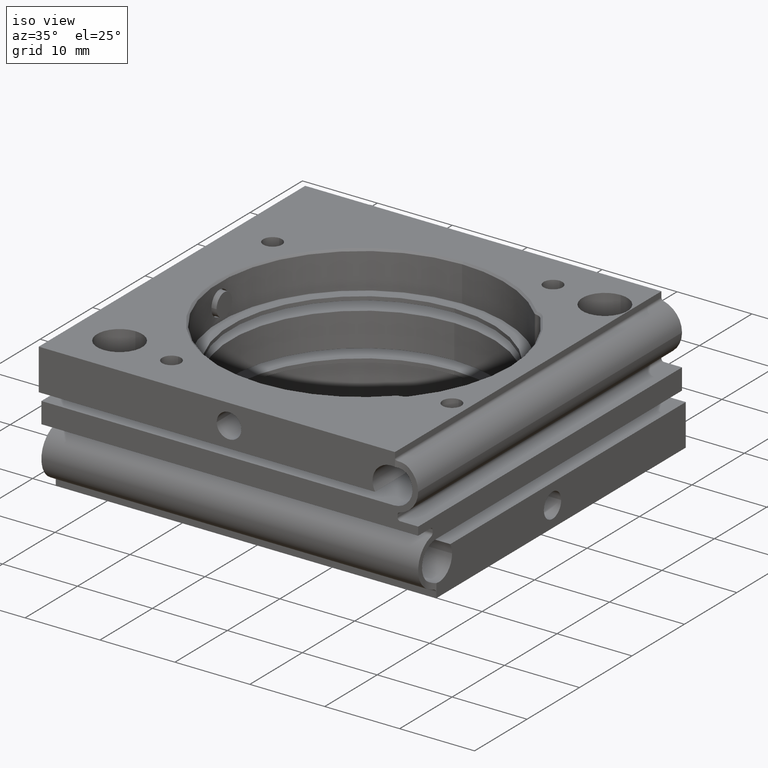
[diagram: clean part render]
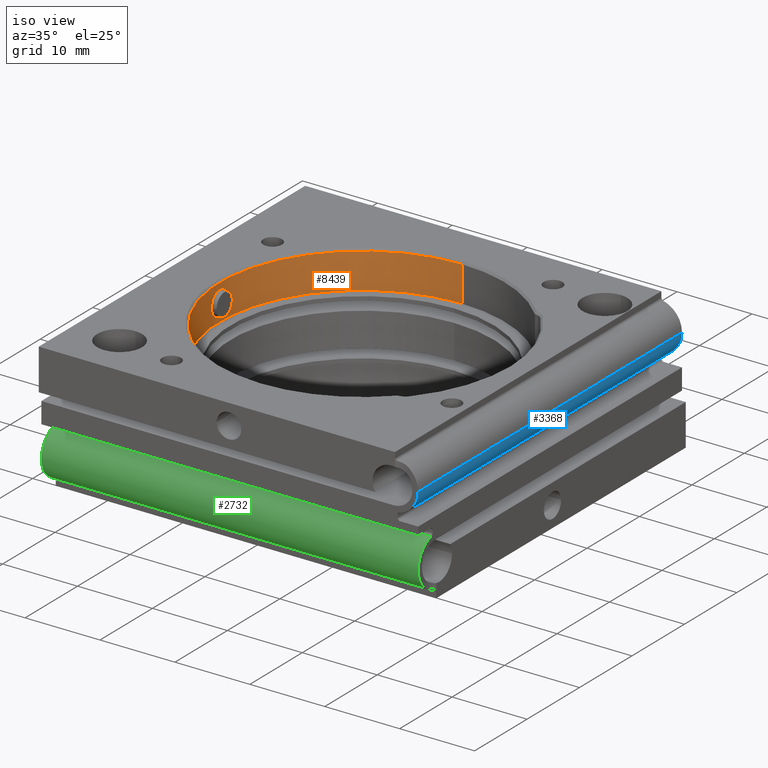
[diagram: same view with three faces highlighted in distinct colors, each labeled with its STEP entity id]
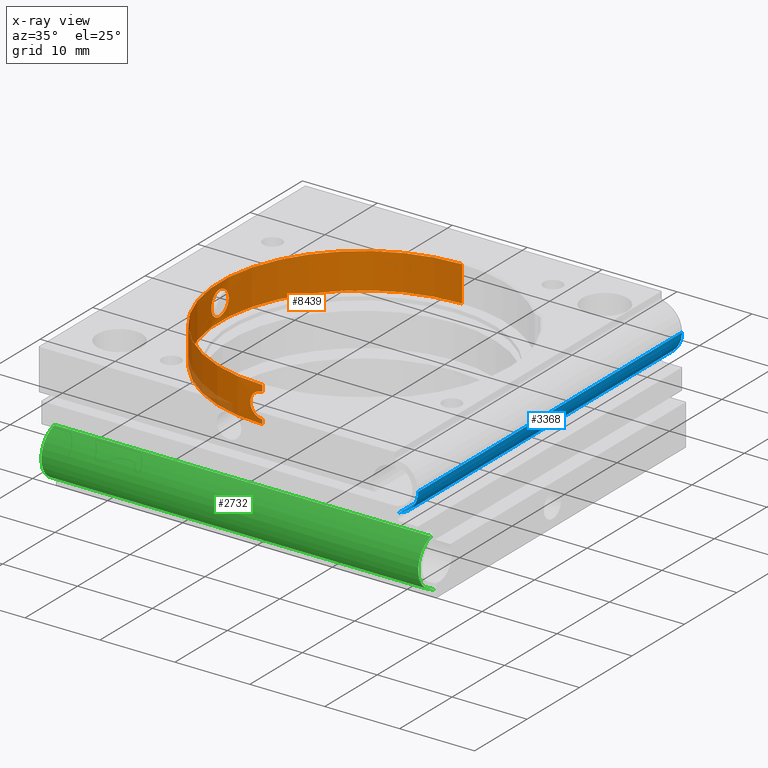
[diagram: x-ray of the same camera — body ghosted, the three highlighted faces saturated]
A machine part, iso view with three faces highlighted in distinct colors.
The next image is the same camera in x-ray (body ghosted, the three faces saturated) — at least one of them is partly hidden behind the body in this view.
Their STEP definitions:

[orange] entity #8439 — the highlighted cylindrical surface (partial cylindrical patch) has radius 19.05 mm, axis along (-0, 0, 1).
#84 = CARTESIAN_POINT ( 'NONE',  ( -19.02366080169686668, 1.005425879609228579, 7.562717791834820957 ) ) ;
#104 = CARTESIAN_POINT ( 'NONE',  ( -3.697785493223491743E-32, -19.05000000000000071, 4.000000000000000000 ) ) ;
#107 = CARTESIAN_POINT ( 'NONE',  ( -1.650000000000001688, -18.97840878472166182, 6.140900534907853370 ) ) ;
#185 = CARTESIAN_POINT ( 'NONE',  ( -18.97840878472165471, -1.649999999999999689, 6.249999999999998224 ) ) ;
#214 = CARTESIAN_POINT ( 'NONE',  ( -1.597315823595468753, -18.98292721722209109, 5.822619052293482866 ) ) ;
#406 = CARTESIAN_POINT ( 'NONE',  ( -2.676328950098065702E-23, -19.05000000000000071, 4.600000000000002309 ) ) ;
#481 = CIRCLE ( 'NONE', #7059, 19.05000000000000426 ) ;
#488 = CARTESIAN_POINT ( 'NONE',  ( -19.00493221006355782, -1.318437202763038885, 5.234880588592252693 ) ) ;
#597 = CARTESIAN_POINT ( 'NONE',  ( -19.03288820857309105, 0.8312960730535323695, 4.808619275777109792 ) ) ;
#653 = CARTESIAN_POINT ( 'NONE',  ( -19.01892787944193941, -1.090269947431020459, 5.006869893780071301 ) ) ;
#730 = EDGE_CURVE ( 'NONE', #3417, #7315, #1932, .T. ) ;
#832 = CARTESIAN_POINT ( 'NONE',  ( -19.02354395279471433, -1.015120132157700805, 7.568436824415528896 ) ) ;
#1071 = VERTEX_POINT ( 'NONE', #6546 ) ;
#1121 = ORIENTED_EDGE ( 'NONE', *, *, #10199, .T. ) ;
#1210 = EDGE_CURVE ( 'NONE', #10106, #7315, #9915, .T. ) ;
#1260 = DIRECTION ( 'NONE',  ( -9.244463733058732095E-33, 5.551115123125781470E-17, 1.000000000000000000 ) ) ;
#1333 = CYLINDRICAL_SURFACE ( 'NONE', #7037, 19.05000000000000071 ) ;
#1350 = CARTESIAN_POINT ( 'NONE',  ( -18.98234907788521753, -1.606161715610203711, 5.815402085650655195 ) ) ;
#1351 = DIRECTION ( 'NONE',  ( -9.244463733058732095E-33, 5.551115123125781470E-17, 1.000000000000000000 ) ) ;
#1405 = CARTESIAN_POINT ( 'NONE',  ( -1.089327059306847145, -19.01898573776998802, 7.494073061843504746 ) ) ;
#1411 = CARTESIAN_POINT ( 'NONE',  ( -18.98291914830409155, 1.597411211239827766, 5.823000541018261700 ) ) ;
#1547 = CARTESIAN_POINT ( 'NONE',  ( 2.332952152375708438E-15, 19.05000000000000426, 8.750000000000000000 ) ) ;
#1638 = CARTESIAN_POINT ( 'NONE',  ( -19.00954817674579544, -1.243131717734086594, 7.340268163359462861 ) ) ;
#1663 = VERTEX_POINT ( 'NONE', #5545 ) ;
#1691 = CARTESIAN_POINT ( 'NONE',  ( -19.04550557614102502, 0.4270043775624488558, 7.847409863888139547 ) ) ;
#1729 = VECTOR ( 'NONE', #8717, 1000.000000000000000 ) ;
#1764 = VERTEX_POINT ( 'NONE', #7756 ) ;
#1779 = CARTESIAN_POINT ( 'NONE',  ( -1.650000000000001688, -18.97840878472165471, 6.250000000000000000 ) ) ;
#1876 = VERTEX_POINT ( 'NONE', #3988 ) ;
#1884 = CARTESIAN_POINT ( 'NONE',  ( -0.2169058293273135873, -19.04905875341815147, 7.889231797222697296 ) ) ;
#1932 = B_SPLINE_CURVE_WITH_KNOTS ( 'NONE', 3,
 ( #1779, #107, #5801, #214, #10088, #5098, #10733, #10034, #4334, #2602, #2703, #3411, #6723, #2658 ),
 .UNSPECIFIED., .F., .F.,
 ( 4, 2, 2, 2, 2, 2, 4 ),
 ( 0.005159947185493062548, 0.005482588728917633762, 0.005805230272342205844, 0.006127871815766777058, 0.006450513359191349140, 0.007095796446040491569, 0.007741079532889633998 ),
 .UNSPECIFIED. ) ;
#1986 = EDGE_CURVE ( 'NONE', #3972, #1876, #6441, .T. ) ;
#2165 = CARTESIAN_POINT ( 'NONE',  ( -19.03621403619985131, -0.7314618236753225311, 4.767048332656361964 ) ) ;
#2222 = CARTESIAN_POINT ( 'NONE',  ( -19.00954817674579900, 1.243131717734081931, 5.159731836640534475 ) ) ;
#2257 = FACE_OUTER_BOUND ( 'NONE', #10292, .T. ) ;
#2279 = CARTESIAN_POINT ( 'NONE',  ( -18.99557200752774122, -1.441379921536983799, 5.418702985907713376 ) ) ;
#2483 = CARTESIAN_POINT ( 'NONE',  ( -18.97840878472165826, 1.649999999999995470, 6.140999988093268414 ) ) ;
#2519 = CARTESIAN_POINT ( 'NONE',  ( -19.05000008418903690, -0.2179912129773705909, 7.900000972000642108 ) ) ;
#2571 = CARTESIAN_POINT ( 'NONE',  ( -18.98234907788521397, 1.606161715610198826, 6.684597914349341252 ) ) ;
#2602 = CARTESIAN_POINT ( 'NONE',  ( -1.014046501044555182, -19.02360314542000808, 4.930706646325136333 ) ) ;
#2658 = CARTESIAN_POINT ( 'NONE',  ( -2.676328950098065702E-23, -19.05000000000000071, 4.600000000000002309 ) ) ;
#2703 = CARTESIAN_POINT ( 'NONE',  ( -0.8299360128548322058, -19.03295036661131334, 4.807806520779631221 ) ) ;
#2944 = CARTESIAN_POINT ( 'NONE',  ( -8.088905766426391678E-32, 4.857225732735060850E-16, 8.750000000000001776 ) ) ;
#3021 = CARTESIAN_POINT ( 'NONE',  ( -3.697785493223491743E-32, 2.220446049250312095E-16, 3.999999999999999112 ) ) ;
#3085 = CARTESIAN_POINT ( 'NONE',  ( -1.006048460868996131, -19.02362642028966988, 7.562214025665359607 ) ) ;
#3091 = CARTESIAN_POINT ( 'NONE',  ( -18.97840878472165116, -1.649999999999999911, 6.031997506143905952 ) ) ;
#3144 = CARTESIAN_POINT ( 'NONE',  ( -1.243335175951153504, -19.00953891013348596, 7.340169191265876414 ) ) ;
#3291 = CARTESIAN_POINT ( 'NONE',  ( -19.03228807867176897, -0.8261730979972802258, 4.817677685528403586 ) ) ;
#3382 = CARTESIAN_POINT ( 'NONE',  ( -19.01892787944193941, 1.090269947431016906, 7.493130106219923370 ) ) ;
#3411 = CARTESIAN_POINT ( 'NONE',  ( -0.4326951818071759770, -19.04612213346759830, 4.643298193011543340 ) ) ;
#3417 = VERTEX_POINT ( 'NONE', #4193 ) ;
#3486 = DIRECTION ( 'NONE',  ( -9.244463733058732095E-33, 5.551115123125781470E-17, 1.000000000000000000 ) ) ;
#3493 = CARTESIAN_POINT ( 'NONE',  ( -18.98559464617742165, -1.565700718210254916, 6.781755004083168892 ) ) ;
#3587 = EDGE_CURVE ( 'NONE', #1071, #10106, #9195, .T. ) ;
#3627 = CARTESIAN_POINT ( 'NONE',  ( -0.1076055733675318621, -19.05000000000000426, 7.900000000000002132 ) ) ;
#3652 = DIRECTION ( 'NONE',  ( -1.000000000000000000, 5.551115123125782702E-17, -9.106159978880874930E-17 ) ) ;
#3664 = ORIENTED_EDGE ( 'NONE', *, *, #1986, .T. ) ;
#3801 = CARTESIAN_POINT ( 'NONE',  ( -19.02354395279470722, 1.015120132157696808, 4.931563175584468439 ) ) ;
#3860 = CARTESIAN_POINT ( 'NONE',  ( -19.04283889331702184, -0.5317594518947715843, 4.684300816730023520 ) ) ;
#3861 = DIRECTION ( 'NONE',  ( 0.000000000000000000, -1.000000000000000000, 4.553079989440438697E-17 ) ) ;
#3972 = VERTEX_POINT ( 'NONE', #9047 ) ;
#3988 = CARTESIAN_POINT ( 'NONE',  ( -18.97840878472165471, 1.649999999999995470, 6.249999999999998224 ) ) ;
#4070 = CARTESIAN_POINT ( 'NONE',  ( -3.697785493223491743E-32, 2.220446049250312095E-16, 3.999999999999999112 ) ) ;
#4193 = CARTESIAN_POINT ( 'NONE',  ( -1.650000000000001688, -18.97840878472165471, 6.250000000000000000 ) ) ;
#4205 = CARTESIAN_POINT ( 'NONE',  ( -19.03228807867176542, 0.8261730979972772282, 7.682322314471591973 ) ) ;
#4251 = LINE ( 'NONE', #7612, #7030 ) ;
#4334 = CARTESIAN_POINT ( 'NONE',  ( -1.242419866459256061, -19.00959519849399726, 5.158911465434536936 ) ) ;
#4358 = CARTESIAN_POINT ( 'NONE',  ( -18.97934719712456086, -1.639305322337799353, 6.466169322338683578 ) ) ;
#4392 = CARTESIAN_POINT ( 'NONE',  ( -0.5312277239909477533, -19.04285372020587275, 7.815878400792404257 ) ) ;
#4574 = CARTESIAN_POINT ( 'NONE',  ( -18.97840878472166182, 1.649999999999996581, 6.467997553798809030 ) ) ;
#4611 = CARTESIAN_POINT ( 'NONE',  ( -18.99617178406149520, 1.432324170649410089, 5.423830064041553101 ) ) ;
#4647 = ORIENTED_EDGE ( 'NONE', *, *, #9609, .T. ) ;
#5015 = CARTESIAN_POINT ( 'NONE',  ( -19.04283889331702184, 0.5317594518947686977, 7.815699183269972927 ) ) ;
#5054 = ORIENTED_EDGE ( 'NONE', *, *, #8202, .F. ) ;
#5098 = CARTESIAN_POINT ( 'NONE',  ( -1.482654979036857279, -18.99226060819843909, 5.517923020540077772 ) ) ;
#5122 = CARTESIAN_POINT ( 'NONE',  ( -18.99617178406149165, -1.432324170649413864, 7.076169935958443347 ) ) ;
#5205 = CARTESIAN_POINT ( 'NONE',  ( -0.4284177245832479497, -19.04547573003193861, 7.847055815269159851 ) ) ;
#5393 = ORIENTED_EDGE ( 'NONE', *, *, #3587, .F. ) ;
#5409 = DIRECTION ( 'NONE',  ( 0.000000000000000000, -1.000000000000000000, 4.553079989440438697E-17 ) ) ;
#5475 = CARTESIAN_POINT ( 'NONE',  ( -1.482700982788256683, -18.99225695614296683, 6.981974265979707717 ) ) ;
#5484 = VECTOR ( 'NONE', #5906, 1000.000000000000000 ) ;
#5530 = CARTESIAN_POINT ( 'NONE',  ( -1.650000000000001688, -18.97840878472165471, 6.250000000000000000 ) ) ;
#5535 = CARTESIAN_POINT ( 'NONE',  ( -18.97840878472165471, -1.649999999999999689, 6.249999999999998224 ) ) ;
#5545 = CARTESIAN_POINT ( 'NONE',  ( 2.676289507052804651E-23, -19.05000000000000071, 7.899999999999999467 ) ) ;
#5588 = CARTESIAN_POINT ( 'NONE',  ( -1.606954639539506680, -18.98228391834215856, 6.682378200344954777 ) ) ;
#5794 = CARTESIAN_POINT ( 'NONE',  ( -19.00481156009691830, 1.312719522444512732, 5.244576333926262990 ) ) ;
#5801 = CARTESIAN_POINT ( 'NONE',  ( -1.639285983885752529, -18.97934890974122268, 6.033635081848483850 ) ) ;
#5824 = CARTESIAN_POINT ( 'NONE',  ( -19.03288820857309460, -0.8312960730535362552, 7.691380724222887544 ) ) ;
#5847 = VERTEX_POINT ( 'NONE', #1547 ) ;
#5906 = DIRECTION ( 'NONE',  ( -9.244463733058732095E-33, 5.551115123125781470E-17, 1.000000000000000000 ) ) ;
#5987 = CARTESIAN_POINT ( 'NONE',  ( -18.97840878472166182, -1.649999999999999911, 6.359000011906728034 ) ) ;
#6173 = B_SPLINE_CURVE_WITH_KNOTS ( 'NONE', 3,
 ( #8797, #2483, #10361, #1411, #9660, #8085, #4611, #5794, #2222, #3801, #597, #7110, #7926, #9607, #9103, #10722, #3860, #2165, #3291, #6608, #653, #488, #2279, #1350, #3091, #5535 ),
 .UNSPECIFIED., .F., .F.,
 ( 4, 2, 2, 2, 2, 2, 2, 2, 2, 2, 2, 2, 4 ),
 ( 0.002578768495344074298, 0.002901117303037179483, 0.003223466110730284669, 0.003545814918423389854, 0.003868163726116495039, 0.004512861341502702808, 0.005157558956888910577, 0.005479907764582014895, 0.005802256572275119213, 0.006124605379968223531, 0.006446954187661326982, 0.007091651803047533016, 0.007736349418433739050 ),
 .UNSPECIFIED. ) ;
#6441 = B_SPLINE_CURVE_WITH_KNOTS ( 'NONE', 3,
 ( #185, #5987, #4358, #7567, #3493, #7667, #5122, #9086, #1638, #832, #5824, #9955, #2519, #10058, #9135, #1691, #5015, #8328, #4205, #84, #3382, #6694, #10004, #2571, #4574, #7714 ),
 .UNSPECIFIED., .F., .F.,
 ( 4, 2, 2, 2, 2, 2, 2, 2, 2, 2, 2, 2, 4 ),
 ( -0.002578753990594046495, -0.002256408835222913512, -0.001934063679851780963, -0.001611718524480647979, -0.001289373369109515213, -0.0006446830583672501138, 7.252375015202178199E-09, 0.0003223524077461468844, 0.0006446975631172794340, 0.0009670427184884115498, 0.001289387873859544099, 0.001934078184601809199, 0.002578768495344074298 ),
 .UNSPECIFIED. ) ;
#6527 = B_SPLINE_CURVE_WITH_KNOTS ( 'NONE', 3,
 ( #9324, #3627, #1884, #5205, #4392, #10356, #7869, #3085, #1405, #3144, #7974, #7045, #5475, #5588, #8903, #5530 ),
 .UNSPECIFIED., .F., .F.,
 ( 4, 2, 2, 2, 2, 2, 2, 4 ),
 ( 0.002581128301973512409, 0.002903480662413455201, 0.003225833022853397992, 0.003548185383293341651, 0.003870537743733285744, 0.004192890104173229403, 0.004515242464613173495, 0.005159947185493062548 ),
 .UNSPECIFIED. ) ;
#6546 = CARTESIAN_POINT ( 'NONE',  ( 2.332952152375708043E-15, 19.05000000000000071, 3.999999999999998224 ) ) ;
#6554 = LINE ( 'NONE', #104, #5484 ) ;
#6608 = CARTESIAN_POINT ( 'NONE',  ( -19.02366080169686668, -1.005425879609231687, 4.937282208165173714 ) ) ;
#6694 = CARTESIAN_POINT ( 'NONE',  ( -19.00493221006355427, 1.318437202763035332, 7.265119411407742867 ) ) ;
#6723 = CARTESIAN_POINT ( 'NONE',  ( -0.2154038755059544674, -19.04999999999999716, 4.600000000000001421 ) ) ;
#7030 = VECTOR ( 'NONE', #3486, 1000.000000000000000 ) ;
#7037 = AXIS2_PLACEMENT_3D ( 'NONE', #3021, #8778, #5409 ) ;
#7045 = CARTESIAN_POINT ( 'NONE',  ( -1.431033802537794886, -18.99626879805296653, 7.078357864236023644 ) ) ;
#7059 = AXIS2_PLACEMENT_3D ( 'NONE', #2944, #1260, #3652 ) ;
#7106 = EDGE_LOOP ( 'NONE', ( #3664, #1121 ) ) ;
#7110 = CARTESIAN_POINT ( 'NONE',  ( -19.04607611152903601, 0.4345934594054675637, 4.643836845685497927 ) ) ;
#7315 = VERTEX_POINT ( 'NONE', #406 ) ;
#7421 = CARTESIAN_POINT ( 'NONE',  ( -3.697785493223491743E-32, -19.05000000000000071, 4.000000000000000000 ) ) ;
#7563 = EDGE_CURVE ( 'NONE', #1071, #5847, #4251, .T. ) ;
#7567 = CARTESIAN_POINT ( 'NONE',  ( -18.98291914830409510, -1.597411211239831763, 6.676999458981736524 ) ) ;
#7612 = CARTESIAN_POINT ( 'NONE',  ( 2.332952152375708043E-15, 19.05000000000000071, 3.999999999999998224 ) ) ;
#7667 = CARTESIAN_POINT ( 'NONE',  ( -18.99223714702448973, -1.482953458186736517, 6.981458245030840004 ) ) ;
#7701 = ORIENTED_EDGE ( 'NONE', *, *, #7563, .T. ) ;
#7714 = CARTESIAN_POINT ( 'NONE',  ( -18.97840878472165471, 1.649999999999995470, 6.249999999999998224 ) ) ;
#7756 = CARTESIAN_POINT ( 'NONE',  ( 0.000000000000000000, -19.05000000000000426, 8.750000000000003553 ) ) ;
#7869 = CARTESIAN_POINT ( 'NONE',  ( -0.8274184727894466906, -19.03223251106518532, 7.681578787792184393 ) ) ;
#7926 = CARTESIAN_POINT ( 'NONE',  ( -19.05000008418903690, 0.2179912129773674545, 4.599999027999355228 ) ) ;
#7974 = CARTESIAN_POINT ( 'NONE',  ( -1.311578202875876453, -19.00489012358731955, 7.256874924202771027 ) ) ;
#8085 = CARTESIAN_POINT ( 'NONE',  ( -18.99223714702449328, 1.482953458186732520, 5.518541754969157331 ) ) ;
#8088 = EDGE_CURVE ( 'NONE', #1663, #3417, #6527, .T. ) ;
#8202 = EDGE_CURVE ( 'NONE', #1663, #1764, #6554, .T. ) ;
#8328 = CARTESIAN_POINT ( 'NONE',  ( -19.03621403619985131, 0.7314618236753194225, 7.732951667343633595 ) ) ;
#8439 = ADVANCED_FACE ( 'NONE', ( #9472, #2257 ), #1333, .F. ) ;
#8633 = CARTESIAN_POINT ( 'NONE',  ( -5.893345629824942805E-32, -19.05000000000000071, 4.000000000000000000 ) ) ;
#8717 = DIRECTION ( 'NONE',  ( -9.244463733058732095E-33, 5.551115123125781470E-17, 1.000000000000000000 ) ) ;
#8778 = DIRECTION ( 'NONE',  ( -9.244463733058732095E-33, 5.551115123125781470E-17, 1.000000000000000000 ) ) ;
#8797 = CARTESIAN_POINT ( 'NONE',  ( -18.97840878472165471, 1.649999999999995470, 6.249999999999998224 ) ) ;
#8804 = ORIENTED_EDGE ( 'NONE', *, *, #1210, .F. ) ;
#8903 = CARTESIAN_POINT ( 'NONE',  ( -1.650000000000002576, -18.97840878472165471, 6.468003358909733436 ) ) ;
#9047 = CARTESIAN_POINT ( 'NONE',  ( -18.97840878472165471, -1.649999999999999689, 6.249999999999998224 ) ) ;
#9086 = CARTESIAN_POINT ( 'NONE',  ( -19.00481156009691119, -1.312719522444517617, 7.255423666073731681 ) ) ;
#9103 = CARTESIAN_POINT ( 'NONE',  ( -19.04906516381053194, -0.2161753320259359457, 4.610695501888649517 ) ) ;
#9135 = CARTESIAN_POINT ( 'NONE',  ( -19.04906516381052839, 0.2161753320259321709, 7.889304498111348707 ) ) ;
#9195 = CIRCLE ( 'NONE', #10227, 19.05000000000000071 ) ;
#9324 = CARTESIAN_POINT ( 'NONE',  ( 2.676289507052804651E-23, -19.05000000000000071, 7.899999999999999467 ) ) ;
#9407 = ORIENTED_EDGE ( 'NONE', *, *, #730, .T. ) ;
#9472 = FACE_BOUND ( 'NONE', #7106, .T. ) ;
#9607 = CARTESIAN_POINT ( 'NONE',  ( -19.04999995790335632, -0.1090066420755774063, 4.600000486024906188 ) ) ;
#9609 = EDGE_CURVE ( 'NONE', #5847, #1764, #481, .T. ) ;
#9660 = CARTESIAN_POINT ( 'NONE',  ( -18.98559464617742165, 1.565700718210250475, 5.718244995916827556 ) ) ;
#9915 = LINE ( 'NONE', #7421, #1729 ) ;
#9955 = CARTESIAN_POINT ( 'NONE',  ( -19.04607611152902891, -0.4345934594054710054, 7.856163154314497632 ) ) ;
#10004 = CARTESIAN_POINT ( 'NONE',  ( -18.99557200752774477, 1.441379921536979580, 7.081297014092283071 ) ) ;
#10034 = CARTESIAN_POINT ( 'NONE',  ( -1.312122914967410292, -19.00485309323475747, 5.243786814184570488 ) ) ;
#10058 = CARTESIAN_POINT ( 'NONE',  ( -19.04999995790335632, 0.1090066420755742005, 7.899999513975089371 ) ) ;
#10088 = CARTESIAN_POINT ( 'NONE',  ( -1.565546011874618726, -18.98560756155283968, 5.717770561297646381 ) ) ;
#10106 = VERTEX_POINT ( 'NONE', #8633 ) ;
#10199 = EDGE_CURVE ( 'NONE', #1876, #3972, #6173, .T. ) ;
#10202 = ORIENTED_EDGE ( 'NONE', *, *, #8088, .T. ) ;
#10227 = AXIS2_PLACEMENT_3D ( 'NONE', #4070, #1351, #3861 ) ;
#10292 = EDGE_LOOP ( 'NONE', ( #5393, #7701, #4647, #5054, #10202, #9407, #8804 ) ) ;
#10356 = CARTESIAN_POINT ( 'NONE',  ( -0.7309250033541200287, -19.03623464194974346, 7.733214987881583902 ) ) ;
#10361 = CARTESIAN_POINT ( 'NONE',  ( -18.97934719712456797, 1.639305322337795801, 6.033830677661314645 ) ) ;
#10722 = CARTESIAN_POINT ( 'NONE',  ( -19.04550557614103212, -0.4270043775624526861, 4.652590136111856012 ) ) ;
#10733 = CARTESIAN_POINT ( 'NONE',  ( -1.431938200656817539, -18.99620121574092479, 5.423147831356095239 ) ) ;

[blue] entity #3368 — the highlighted cylindrical surface (edge-blend (fillet) strip) has radius 3.25 mm, axis along (-0, -1, 0).
#226 = VERTEX_POINT ( 'NONE', #2138 ) ;
#294 = ORIENTED_EDGE ( 'NONE', *, *, #9478, .T. ) ;
#994 = CARTESIAN_POINT ( 'NONE',  ( 21.65000000000000568, -24.89999999999999858, 4.750000000000000000 ) ) ;
#1135 = DIRECTION ( 'NONE',  ( -9.823725385216690060E-17, -1.000000000000000000, 5.551115123125782702E-17 ) ) ;
#1463 = ORIENTED_EDGE ( 'NONE', *, *, #2725, .T. ) ;
#1521 = CARTESIAN_POINT ( 'NONE',  ( 24.90000000000000924, 25.40000000000000568, 4.749999999999999112 ) ) ;
#1708 = EDGE_CURVE ( 'NONE', #7813, #226, #3629, .T. ) ;
#1859 = CIRCLE ( 'NONE', #2567, 3.249999999999999556 ) ;
#2138 = CARTESIAN_POINT ( 'NONE',  ( 24.90000000000000568, -24.89999999999999858, 4.749999999999999112 ) ) ;
#2567 = AXIS2_PLACEMENT_3D ( 'NONE', #994, #5825, #9087 ) ;
#2725 = EDGE_CURVE ( 'NONE', #5435, #6834, #8720, .T. ) ;
#3368 = ADVANCED_FACE ( 'NONE', ( #6792 ), #7554, .T. ) ;
#3629 = LINE ( 'NONE', #7700, #3823 ) ;
#3672 = CARTESIAN_POINT ( 'NONE',  ( 22.41736111111111640, 25.40000000000000568, 1.591890292413143504 ) ) ;
#3740 = DIRECTION ( 'NONE',  ( -9.823725385216690060E-17, -1.000000000000000000, 5.551115123125782702E-17 ) ) ;
#3823 = VECTOR ( 'NONE', #3740, 1000.000000000000000 ) ;
#3963 = AXIS2_PLACEMENT_3D ( 'NONE', #5370, #1135, #7656 ) ;
#4348 = DIRECTION ( 'NONE',  ( 1.000000000000000000, 0.000000000000000000, 0.000000000000000000 ) ) ;
#5370 = CARTESIAN_POINT ( 'NONE',  ( 21.65000000000000924, 25.40000000000000568, 4.749999999999997335 ) ) ;
#5416 = CARTESIAN_POINT ( 'NONE',  ( 22.41736111111111640, -24.89999999999999858, 1.591890292413147057 ) ) ;
#5435 = VERTEX_POINT ( 'NONE', #5416 ) ;
#5744 = VECTOR ( 'NONE', #10495, 1000.000000000000000 ) ;
#5825 = DIRECTION ( 'NONE',  ( 9.823725385216690060E-17, 1.000000000000000000, -5.551115123125782702E-17 ) ) ;
#6061 = EDGE_LOOP ( 'NONE', ( #8594, #8609, #294, #1463 ) ) ;
#6562 = CARTESIAN_POINT ( 'NONE',  ( 22.41736111111111640, 25.40000000000000568, 1.591890292413144170 ) ) ;
#6590 = AXIS2_PLACEMENT_3D ( 'NONE', #8473, #8317, #4348 ) ;
#6792 = FACE_OUTER_BOUND ( 'NONE', #6061, .T. ) ;
#6834 = VERTEX_POINT ( 'NONE', #6562 ) ;
#7554 = CYLINDRICAL_SURFACE ( 'NONE', #6590, 3.249999999999999556 ) ;
#7656 = DIRECTION ( 'NONE',  ( 1.000000000000000000, 0.000000000000000000, 0.000000000000000000 ) ) ;
#7700 = CARTESIAN_POINT ( 'NONE',  ( 24.90000000000000924, 25.40000000000000568, 4.749999999999997335 ) ) ;
#7813 = VERTEX_POINT ( 'NONE', #1521 ) ;
#8317 = DIRECTION ( 'NONE',  ( -9.823725385216690060E-17, -1.000000000000000000, 5.551115123125782702E-17 ) ) ;
#8473 = CARTESIAN_POINT ( 'NONE',  ( 21.65000000000000924, 25.40000000000000568, 4.749999999999997335 ) ) ;
#8594 = ORIENTED_EDGE ( 'NONE', *, *, #10089, .T. ) ;
#8609 = ORIENTED_EDGE ( 'NONE', *, *, #1708, .T. ) ;
#8720 = LINE ( 'NONE', #3672, #5744 ) ;
#9087 = DIRECTION ( 'NONE',  ( 1.000000000000000000, 0.000000000000000000, 0.000000000000000000 ) ) ;
#9319 = CIRCLE ( 'NONE', #3963, 3.249999999999999556 ) ;
#9478 = EDGE_CURVE ( 'NONE', #226, #5435, #1859, .T. ) ;
#10089 = EDGE_CURVE ( 'NONE', #6834, #7813, #9319, .T. ) ;
#10495 = DIRECTION ( 'NONE',  ( 9.823725385216690060E-17, 1.000000000000000000, -5.551115123125782702E-17 ) ) ;

[green] entity #2732 — the highlighted cylindrical surface (edge-blend (fillet) strip) has radius 3.25 mm, axis along (1, -0, 0).
#355 = CIRCLE ( 'NONE', #10574, 3.249999999999999556 ) ;
#360 = CARTESIAN_POINT ( 'NONE',  ( -25.40000000000000213, -21.64999999999999147, -4.749999999999998224 ) ) ;
#509 = CIRCLE ( 'NONE', #7615, 3.249999999999999556 ) ;
#540 = VERTEX_POINT ( 'NONE', #4516 ) ;
#748 = EDGE_CURVE ( 'NONE', #4217, #10025, #509, .T. ) ;
#1036 = CARTESIAN_POINT ( 'NONE',  ( 25.02706603401727392, -22.83337723049481838, -7.785977819579875892 ) ) ;
#1091 = CARTESIAN_POINT ( 'NONE',  ( 24.92141869312925095, -23.25716026191370034, -7.584533274308141948 ) ) ;
#1327 = CYLINDRICAL_SURFACE ( 'NONE', #7648, 3.249999999999999556 ) ;
#1880 = CARTESIAN_POINT ( 'NONE',  ( 24.90000000000000924, -21.64999999999999503, -4.749999999999998224 ) ) ;
#2132 = CARTESIAN_POINT ( 'NONE',  ( 24.90000000000000924, -23.64999999999997726, -7.311737691489909707 ) ) ;
#2188 = VECTOR ( 'NONE', #5177, 1000.000000000000000 ) ;
#2221 = VECTOR ( 'NONE', #8420, 1000.000000000000000 ) ;
#2732 = ADVANCED_FACE ( 'NONE', ( #7789 ), #1327, .T. ) ;
#3055 = CARTESIAN_POINT ( 'NONE',  ( -25.40000000000000568, -22.41736111111110219, -1.591890292413145280 ) ) ;
#3222 = ORIENTED_EDGE ( 'NONE', *, *, #7703, .T. ) ;
#3586 = CARTESIAN_POINT ( 'NONE',  ( 25.10870090299697210, -22.62258075952401271, -7.858245202547762709 ) ) ;
#3775 = DIRECTION ( 'NONE',  ( 0.000000000000000000, 1.000000000000000000, 0.000000000000000000 ) ) ;
#3776 = EDGE_CURVE ( 'NONE', #4157, #5797, #355, .T. ) ;
#4022 = ORIENTED_EDGE ( 'NONE', *, *, #748, .T. ) ;
#4056 = EDGE_CURVE ( 'NONE', #10025, #540, #5944, .T. ) ;
#4132 = CARTESIAN_POINT ( 'NONE',  ( -25.40000000000000213, -22.41736111111110219, -1.591890292413145280 ) ) ;
#4157 = VERTEX_POINT ( 'NONE', #2132 ) ;
#4217 = VERTEX_POINT ( 'NONE', #3055 ) ;
#4284 = DIRECTION ( 'NONE',  ( 1.000000000000000000, -5.551115123125782702E-17, 1.232595164407830946E-32 ) ) ;
#4353 = CARTESIAN_POINT ( 'NONE',  ( 24.90000000000000924, -23.64999999999997726, -7.311737691489909707 ) ) ;
#4431 = ORIENTED_EDGE ( 'NONE', *, *, #4056, .T. ) ;
#4516 = CARTESIAN_POINT ( 'NONE',  ( 25.22500543228293424, -22.41736111111110219, -7.908109707586851833 ) ) ;
#5000 = LINE ( 'NONE', #4132, #2221 ) ;
#5177 = DIRECTION ( 'NONE',  ( 1.000000000000000000, -5.551115123125782702E-17, 1.232595164407830946E-32 ) ) ;
#5719 = ORIENTED_EDGE ( 'NONE', *, *, #9951, .T. ) ;
#5797 = VERTEX_POINT ( 'NONE', #8776 ) ;
#5855 = DIRECTION ( 'NONE',  ( 0.000000000000000000, 1.000000000000000000, 0.000000000000000000 ) ) ;
#5944 = LINE ( 'NONE', #7574, #2188 ) ;
#6283 = B_SPLINE_CURVE_WITH_KNOTS ( 'NONE', 3,
 ( #8698, #3586, #1036, #1091, #6895, #4353 ),
 .UNSPECIFIED., .F., .F.,
 ( 4, 2, 4 ),
 ( 0.000000000000000000, 0.0007118922461806711111, 0.001423784492361342222 ),
 .UNSPECIFIED. ) ;
#6895 = CARTESIAN_POINT ( 'NONE',  ( 24.90000000000000924, -23.46023702222724339, -7.459889454570983069 ) ) ;
#6952 = EDGE_LOOP ( 'NONE', ( #4022, #4431, #3222, #6980, #5719 ) ) ;
#6980 = ORIENTED_EDGE ( 'NONE', *, *, #3776, .T. ) ;
#7040 = DIRECTION ( 'NONE',  ( 0.000000000000000000, 1.000000000000000000, 0.000000000000000000 ) ) ;
#7574 = CARTESIAN_POINT ( 'NONE',  ( -25.40000000000000213, -22.41736111111110219, -7.908109707586850057 ) ) ;
#7615 = AXIS2_PLACEMENT_3D ( 'NONE', #9224, #4284, #5855 ) ;
#7648 = AXIS2_PLACEMENT_3D ( 'NONE', #360, #9635, #3775 ) ;
#7703 = EDGE_CURVE ( 'NONE', #540, #4157, #6283, .T. ) ;
#7789 = FACE_OUTER_BOUND ( 'NONE', #6952, .T. ) ;
#8420 = DIRECTION ( 'NONE',  ( -1.000000000000000000, 5.551115123125782702E-17, -1.232595164407830946E-32 ) ) ;
#8519 = DIRECTION ( 'NONE',  ( -1.000000000000000000, 5.551115123125782702E-17, -1.232595164407830946E-32 ) ) ;
#8698 = CARTESIAN_POINT ( 'NONE',  ( 25.22500543228293424, -22.41736111111110219, -7.908109707586851833 ) ) ;
#8776 = CARTESIAN_POINT ( 'NONE',  ( 24.89999999999999858, -22.41736111111110574, -1.591890292413145280 ) ) ;
#9224 = CARTESIAN_POINT ( 'NONE',  ( -25.40000000000000213, -21.64999999999999147, -4.749999999999998224 ) ) ;
#9635 = DIRECTION ( 'NONE',  ( 1.000000000000000000, -5.551115123125782702E-17, 1.232595164407830946E-32 ) ) ;
#9951 = EDGE_CURVE ( 'NONE', #5797, #4217, #5000, .T. ) ;
#10025 = VERTEX_POINT ( 'NONE', #10307 ) ;
#10307 = CARTESIAN_POINT ( 'NONE',  ( -25.40000000000000568, -22.41736111111110219, -7.908109707586850057 ) ) ;
#10574 = AXIS2_PLACEMENT_3D ( 'NONE', #1880, #8519, #7040 ) ;